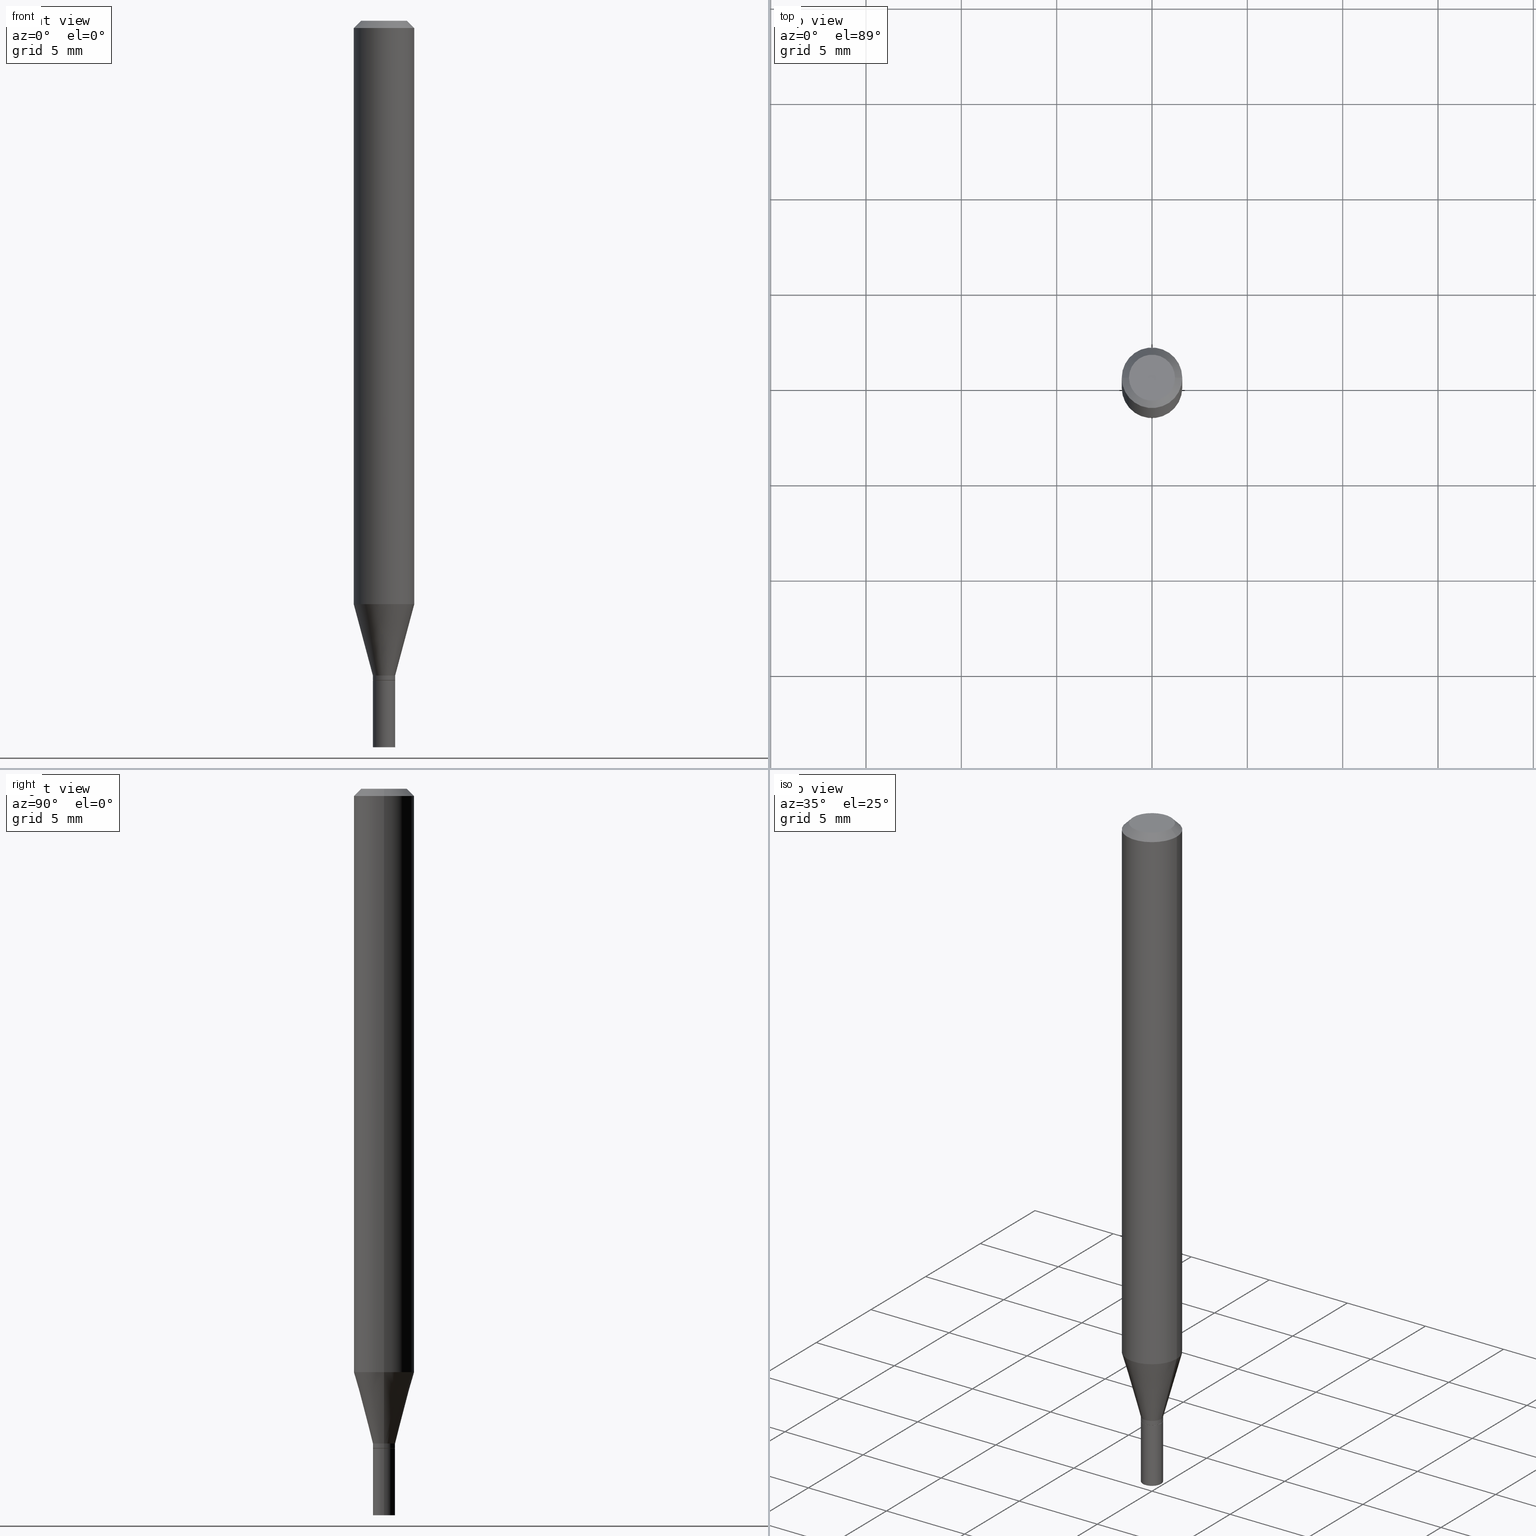
[diagram: canonical four-view strip — front | top / right | iso, engineering-drawing reading convention]
A machine part, canonical four-view strip (front | top / right | iso — engineering-drawing reading convention). The complete STEP part file that produces these views, byte-faithful:
ISO-10303-21;
HEADER;
FILE_DESCRIPTION (( 'STEP AP203' ),
    '1' );
FILE_NAME ('00484.STEP',
    '2024-03-19T21:20:45',
    ( '' ),
    ( '' ),
    'SwSTEP 2.0',
    'SolidWorks 2023',
    '' );
FILE_SCHEMA (( 'CONFIG_CONTROL_DESIGN' ));
ENDSEC;

DATA;
#1 = CARTESIAN_POINT ( 'NONE',  ( 3.306273825962305163E-29, -4.720482770115934188E-15, -1.352000000000000313 ) ) ;
#2 = CARTESIAN_POINT ( 'NONE',  ( 0.02299999999999992675, -4.881090911702717249E-15, -1.352000000000000313 ) ) ;
#3 = EDGE_LOOP ( 'NONE', ( #179, #241, #11, #72 ) ) ;
#4 = CARTESIAN_POINT ( 'NONE',  ( 0.02299999999999992675, -4.881090911702717249E-15, -1.352000000000000313 ) ) ;
#5 = DIRECTION ( 'NONE',  ( 1.000000000000000000, -6.982962677686267499E-15, 4.876176775795935793E-29 ) ) ;
#6 = AXIS2_PLACEMENT_3D ( 'NONE', #141, #37, #36 ) ;
#7 = ADVANCED_FACE ( 'NONE', ( #449 ), #344, .T. ) ;
#8 = AXIS2_PLACEMENT_3D ( 'NONE', #329, #154, #5 ) ;
#9 = CARTESIAN_POINT ( 'NONE',  ( -0.02249999999999999917, -4.592876240784230769E-15, -1.362000000000000099 ) ) ;
#10 = CARTESIAN_POINT ( 'NONE',  ( 3.668203209277705088E-31, -5.237222008264718399E-17, -0.01499999999999999944 ) ) ;
#11 = ORIENTED_EDGE ( 'NONE', *, *, #233, .T. ) ;
#12 = EDGE_CURVE ( 'NONE', #442, #263, #201, .T. ) ;
#13 = CARTESIAN_POINT ( 'NONE',  ( 3.316907271900976096E-16, 0.04749999999999999362, -4.881874950129340235E-17 ) ) ;
#14 = APPROVAL ( #171, 'UNSPECIFIED' ) ;
#15 = LOCAL_TIME ( 17, 20, 45.00000000000000000, #31 ) ;
#16 = AXIS2_PLACEMENT_3D ( 'NONE', #243, #350, #319 ) ;
#17 = DIRECTION ( 'NONE',  ( -1.000000000000000000, 6.982962677686265922E-15, -4.876176775795935793E-29 ) ) ;
#18 = DIRECTION ( 'NONE',  ( 1.000000000000000000, -6.982962677686247778E-15, 0.000000000000000000 ) ) ;
#19 = CARTESIAN_POINT ( 'NONE',  ( 0.02249999999999999917, -4.912514243752305891E-15, -1.362000000000000099 ) ) ;
#20 = CARTESIAN_POINT ( 'NONE',  ( 0.02299999999999992328, -1.606081415867836038E-16, 1.121520658433061533E-30 ) ) ;
#21 = EDGE_LOOP ( 'NONE', ( #405, #301 ) ) ;
#22 = EDGE_CURVE ( 'NONE', #321, #124, #229, .T. ) ;
#23 = PRODUCT_DEFINITION_SHAPE ( 'NONE', 'NONE',  #361 ) ;
#24 = CC_DESIGN_PERSON_AND_ORGANIZATION_ASSIGNMENT ( #69, #354, ( #361 ) ) ;
#25 = CC_DESIGN_SECURITY_CLASSIFICATION ( #283, ( #394 ) ) ;
#26 = AXIS2_PLACEMENT_3D ( 'NONE', #453, #250, #387 ) ;
#27 = CARTESIAN_POINT ( 'NONE',  ( -0.02249999999999999917, -4.595525467958341970E-15, -1.362000000000000099 ) ) ;
#28 = DIRECTION ( 'NONE',  ( -2.445468806185136597E-29, 3.491481338843145583E-15, 1.000000000000000000 ) ) ;
#29 = DIRECTION ( 'NONE',  ( -2.445468806185136877E-29, 3.491481338843145188E-15, 1.000000000000000000 ) ) ;
#30 = CARTESIAN_POINT ( 'NONE',  ( 0.06250000000000000000, -4.642217700336797405E-15, -1.204583993101029815 ) ) ;
#31 = COORDINATED_UNIVERSAL_TIME_OFFSET ( 5, 0, .BEHIND. ) ;
#32 = DIRECTION ( 'NONE',  ( 1.000000000000000000, -6.982962677686267499E-15, 4.876176775795935793E-29 ) ) ;
#33 = CARTESIAN_POINT ( 'NONE',  ( 0.04749999999999999362, -4.035134999187574186E-16, 2.340532281875146013E-16 ) ) ;
#34 = VECTOR ( 'NONE', #90, 39.37007874015748143 ) ;
#35 = AXIS2_PLACEMENT_3D ( 'NONE', #101, #247, #396 ) ;
#36 = DIRECTION ( 'NONE',  ( 1.000000000000000000, 0.000000000000000000, 0.000000000000000000 ) ) ;
#37 = DIRECTION ( 'NONE',  ( 0.000000000000000000, 0.000000000000000000, 1.000000000000000000 ) ) ;
#38 = ORIENTED_EDGE ( 'NONE', *, *, #305, .T. ) ;
#39 = ORIENTED_EDGE ( 'NONE', *, *, #108, .F. ) ;
#40 = CARTESIAN_POINT ( 'NONE',  ( 0.02299999999999999961, -1.606081415867841462E-16, 1.121520658433065211E-30 ) ) ;
#41 = DATE_TIME_ROLE ( 'creation_date' ) ;
#42 = EDGE_CURVE ( 'NONE', #236, #197, #357, .T. ) ;
#43 = FACE_OUTER_BOUND ( 'NONE', #292, .T. ) ;
#44 = CIRCLE ( 'NONE', #445, 0.02299999999999992675 ) ;
#45 = APPROVAL_PERSON_ORGANIZATION ( #132, #196, #289 ) ;
#46 = AXIS2_PLACEMENT_3D ( 'NONE', #131, #203, #389 ) ;
#47 = CYLINDRICAL_SURFACE ( 'NONE', #126, 0.02299999999999992328 ) ;
#48 = ORIENTED_EDGE ( 'NONE', *, *, #22, .T. ) ;
#49 = DIRECTION ( 'NONE',  ( 1.000000000000000000, -6.982962677686266711E-15, 4.876176775795935793E-29 ) ) ;
#50 = ORIENTED_EDGE ( 'NONE', *, *, #262, .T. ) ;
#51 = ORIENTED_EDGE ( 'NONE', *, *, #307, .T. ) ;
#52 = AXIS2_PLACEMENT_3D ( 'NONE', #404, #54, #291 ) ;
#53 = ORIENTED_EDGE ( 'NONE', *, *, #314, .T. ) ;
#54 = DIRECTION ( 'NONE',  ( -2.445468806185136597E-29, 3.491481338843145583E-15, 1.000000000000000000 ) ) ;
#55 = EDGE_CURVE ( 'NONE', #185, #231, #418, .T. ) ;
#56 = DIRECTION ( 'NONE',  ( -2.445468806185136597E-29, 3.491481338843145583E-15, 1.000000000000000000 ) ) ;
#57 = CLOSED_SHELL ( 'NONE', ( #377, #422, #107, #411, #244, #87, #426, #360, #450, #272, #7, #366 ) ) ;
#58 = CONICAL_SURFACE ( 'NONE', #46, 0.06250000000000000000, 0.7853981633974405074 ) ;
#59 = ORIENTED_EDGE ( 'NONE', *, *, #108, .T. ) ;
#60 = CC_DESIGN_PERSON_AND_ORGANIZATION_ASSIGNMENT ( #428, #364, ( #242 ) ) ;
#61 = DIRECTION ( 'NONE',  ( -2.445468806185136597E-29, 3.491481338843145583E-15, 1.000000000000000000 ) ) ;
#62 = CARTESIAN_POINT ( 'NONE',  ( -0.02299999999999999961, -4.832884966659718819E-15, -1.362000000000000099 ) ) ;
#63 = DIRECTION ( 'NONE',  ( -2.445468806185136597E-29, 3.491481338843145583E-15, 1.000000000000000000 ) ) ;
#64 = APPROVAL_ROLE ( '' ) ;
#65 = FACE_OUTER_BOUND ( 'NONE', #392, .T. ) ;
#66 = AXIS2_PLACEMENT_3D ( 'NONE', #10, #375, #146 ) ;
#67 = DATE_AND_TIME ( #320, #15 ) ;
#68 = CARTESIAN_POINT ( 'NONE',  ( -0.04749999999999999362, 3.578768372314215436E-16, 2.340532281875096216E-16 ) ) ;
#69 = PERSON_AND_ORGANIZATION ( #195, #106 ) ;
#70 = ADVANCED_BREP_SHAPE_REPRESENTATION ( '00484', ( #99, #265, #6 ), #118 ) ;
#71 = LINE ( 'NONE', #178, #226 ) ;
#72 = ORIENTED_EDGE ( 'NONE', *, *, #441, .F. ) ;
#73 = CIRCLE ( 'NONE', #385, 0.02249999999999999917 ) ;
#74 = PERSON_AND_ORGANIZATION ( #195, #106 ) ;
#75 = DIRECTION ( 'NONE',  ( -2.445468806185136597E-29, 3.491481338843145583E-15, 1.000000000000000000 ) ) ;
#76 = VERTEX_POINT ( 'NONE', #9 ) ;
#77 = LINE ( 'NONE', #40, #415 ) ;
#78 = EDGE_CURVE ( 'NONE', #162, #142, #414, .T. ) ;
#79 = PERSON_AND_ORGANIZATION ( #195, #106 ) ;
#80 = VERTEX_POINT ( 'NONE', #419 ) ;
#81 = CARTESIAN_POINT ( 'NONE',  ( -0.06250000000000000000, 4.440892098500626162E-16, -3.074334431409316114E-30 ) ) ;
#82 = EDGE_LOOP ( 'NONE', ( #433, #187, #296, #245 ) ) ;
#83 = ORIENTED_EDGE ( 'NONE', *, *, #156, .T. ) ;
#84 = LOCAL_TIME ( 17, 20, 45.00000000000000000, #227 ) ;
#85 = AXIS2_PLACEMENT_3D ( 'NONE', #135, #315, #457 ) ;
#86 = DIRECTION ( 'NONE',  ( -2.445468806185136597E-29, 3.491481338843145583E-15, 1.000000000000000000 ) ) ;
#87 = ADVANCED_FACE ( 'NONE', ( #273 ), #268, .T. ) ;
#88 = ORIENTED_EDGE ( 'NONE', *, *, #156, .F. ) ;
#89 = DATE_TIME_ROLE ( 'classification_date' ) ;
#90 = DIRECTION ( 'NONE',  ( 0.7071067811865656694, -2.468850131082446387E-15, 0.7071067811865294761 ) ) ;
#91 = ORIENTED_EDGE ( 'NONE', *, *, #42, .T. ) ;
#92 = ORIENTED_EDGE ( 'NONE', *, *, #55, .T. ) ;
#93 = VECTOR ( 'NONE', #223, 39.37007874015748143 ) ;
#94 = DIRECTION ( 'NONE',  ( 1.000000000000000000, -6.982962677686266711E-15, 4.876176775795935793E-29 ) ) ;
#95 = DIMENSIONAL_EXPONENTS ( 1.000000000000000000, 0.000000000000000000, 0.000000000000000000, 0.000000000000000000, 0.000000000000000000, 0.000000000000000000, 0.000000000000000000 ) ;
#96 = AXIS2_PLACEMENT_3D ( 'NONE', #399, #184, #192 ) ;
#97 = CARTESIAN_POINT ( 'NONE',  ( 3.306273825962305163E-29, -4.720482770115934188E-15, -1.352000000000000313 ) ) ;
#98 = ORIENTED_EDGE ( 'NONE', *, *, #206, .T. ) ;
#99 = MANIFOLD_SOLID_BREP ( 'Body-Move/Copy2[1]', #164 ) ;
#100 = EDGE_CURVE ( 'NONE', #80, #335, #456, .T. ) ;
#101 = CARTESIAN_POINT ( 'NONE',  ( 3.576687321579069994E-29, -5.368277968210015545E-15, -1.500000000000000222 ) ) ;
#102 = PLANE ( 'NONE',  #26 ) ;
#103 = AXIS2_PLACEMENT_3D ( 'NONE', #97, #61, #110 ) ;
#104 = CARTESIAN_POINT ( 'NONE',  ( 3.329505779621063907E-29, -4.753651842834943544E-15, -1.361500000000000155 ) ) ;
#105 = DATE_AND_TIME ( #316, #172 ) ;
#106 = ORGANIZATION ( 'UNSPECIFIED', 'UNSPECIFIED', '' ) ;
#107 = ADVANCED_FACE ( 'NONE', ( #251 ), #58, .T. ) ;
#108 = EDGE_CURVE ( 'NONE', #368, #462, #345, .T. ) ;
#109 = CIRCLE ( 'NONE', #276, 0.04749999999999999362 ) ;
#110 = DIRECTION ( 'NONE',  ( 1.000000000000000000, -6.982962677686269866E-15, 0.000000000000000000 ) ) ;
#111 = PRODUCT_RELATED_PRODUCT_CATEGORY ( 'detail', '', ( #242 ) ) ;
#112 = DATE_AND_TIME ( #312, #222 ) ;
#113 = EDGE_LOOP ( 'NONE', ( #120, #53, #382, #288 ) ) ;
#114 = CARTESIAN_POINT ( 'NONE',  ( 0.000000000000000000, 0.000000000000000000, 0.000000000000000000 ) ) ;
#115 = EDGE_LOOP ( 'NONE', ( #293, #421, #127, #309 ) ) ;
#116 = APPLICATION_CONTEXT ( 'configuration controlled 3d designs of mechanical parts and assemblies' ) ;
#117 = CARTESIAN_POINT ( 'NONE',  ( 3.306273825962305163E-29, -4.720482770115934188E-15, -1.352000000000000313 ) ) ;
#118 =( GEOMETRIC_REPRESENTATION_CONTEXT ( 3 ) GLOBAL_UNCERTAINTY_ASSIGNED_CONTEXT ( ( #174 ) ) GLOBAL_UNIT_ASSIGNED_CONTEXT ( ( #136, #460, #133 ) ) REPRESENTATION_CONTEXT ( 'NONE', 'WORKASPACE' ) );
#119 = CIRCLE ( 'NONE', #346, 0.02299999999999999961 ) ;
#120 = ORIENTED_EDGE ( 'NONE', *, *, #100, .T. ) ;
#121 = CARTESIAN_POINT ( 'NONE',  ( -0.02299999999999992675, -4.159375632011227060E-15, -1.352000000000000313 ) ) ;
#122 = CARTESIAN_POINT ( 'NONE',  ( -5.723698685194923234E-45, 8.171924785126947293E-31, 2.340532281875119882E-16 ) ) ;
#123 = DIRECTION ( 'NONE',  ( -2.445468806185136597E-29, 3.491481338843145583E-15, 1.000000000000000000 ) ) ;
#124 = VERTEX_POINT ( 'NONE', #30 ) ;
#125 = ADVANCED_FACE ( 'NONE', ( #170 ), #423, .F. ) ;
#126 = AXIS2_PLACEMENT_3D ( 'NONE', #114, #86, #228 ) ;
#127 = ORIENTED_EDGE ( 'NONE', *, *, #78, .T. ) ;
#128 = CIRCLE ( 'NONE', #443, 0.06250000000000000000 ) ;
#129 = EDGE_CURVE ( 'NONE', #80, #236, #77, .T. ) ;
#130 = FACE_OUTER_BOUND ( 'NONE', #439, .T. ) ;
#131 = CARTESIAN_POINT ( 'NONE',  ( 3.668203209277705088E-31, -5.237222008264718399E-17, -0.01499999999999999944 ) ) ;
#132 = PERSON_AND_ORGANIZATION ( #195, #106 ) ;
#133 =( NAMED_UNIT ( * ) SI_UNIT ( $, .STERADIAN. ) SOLID_ANGLE_UNIT ( ) );
#134 = AXIS2_PLACEMENT_3D ( 'NONE', #333, #370, #49 ) ;
#135 = CARTESIAN_POINT ( 'NONE',  ( 3.306273825962305163E-29, -4.720482770115934188E-15, -1.352000000000000313 ) ) ;
#136 =( CONVERSION_BASED_UNIT ( 'INCH', #447 ) LENGTH_UNIT ( ) NAMED_UNIT ( #95 ) );
#137 = EDGE_CURVE ( 'NONE', #124, #462, #128, .T. ) ;
#138 = EDGE_CURVE ( 'NONE', #231, #142, #246, .T. ) ;
#139 = DIRECTION ( 'NONE',  ( -2.445468806185136597E-29, 3.491481338843145583E-15, 1.000000000000000000 ) ) ;
#140 = ORIENTED_EDGE ( 'NONE', *, *, #138, .T. ) ;
#141 = CARTESIAN_POINT ( 'NONE',  ( 0.000000000000000000, 0.000000000000000000, 0.000000000000000000 ) ) ;
#142 = VERTEX_POINT ( 'NONE', #390 ) ;
#143 = AXIS2_PLACEMENT_3D ( 'NONE', #122, #191, #332 ) ;
#144 = DIRECTION ( 'NONE',  ( -2.445468806185136877E-29, 3.491481338843145188E-15, 1.000000000000000000 ) ) ;
#145 = ORIENTED_EDGE ( 'NONE', *, *, #348, .T. ) ;
#146 = DIRECTION ( 'NONE',  ( -1.000000000000000000, 6.982962677686266711E-15, 0.000000000000000000 ) ) ;
#147 = FACE_OUTER_BOUND ( 'NONE', #328, .T. ) ;
#148 = DATE_AND_TIME ( #221, #84 ) ;
#149 = FACE_OUTER_BOUND ( 'NONE', #155, .T. ) ;
#150 = ORIENTED_EDGE ( 'NONE', *, *, #22, .F. ) ;
#151 = AXIS2_PLACEMENT_3D ( 'NONE', #340, #278, #18 ) ;
#152 = CIRCLE ( 'NONE', #96, 0.02249999999999999917 ) ;
#153 = CARTESIAN_POINT ( 'NONE',  ( 3.668203209277705088E-31, -5.237222008264718399E-17, -0.01499999999999999944 ) ) ;
#154 = DIRECTION ( 'NONE',  ( -2.445468806185136597E-29, 3.491481338843145583E-15, 1.000000000000000000 ) ) ;
#155 = EDGE_LOOP ( 'NONE', ( #287, #264, #330, #324 ) ) ;
#156 = EDGE_CURVE ( 'NONE', #462, #124, #186, .T. ) ;
#157 = DIRECTION ( 'NONE',  ( 2.438088387897960049E-29, -3.491481338843145188E-15, -1.000000000000000000 ) ) ;
#158 = VECTOR ( 'NONE', #451, 39.37007874015748143 ) ;
#159 = CARTESIAN_POINT ( 'NONE',  ( -0.06250000000000000000, -3.761693323131343908E-15, -1.204583993101029815 ) ) ;
#160 = ORIENTED_EDGE ( 'NONE', *, *, #213, .F. ) ;
#161 = CARTESIAN_POINT ( 'NONE',  ( 0.02299999999999999961, -4.916005725091148109E-15, -1.362000000000000099 ) ) ;
#162 = VERTEX_POINT ( 'NONE', #425 ) ;
#163 = SHAPE_DEFINITION_REPRESENTATION ( #23, #70 ) ;
#164 = CLOSED_SHELL ( 'NONE', ( #393, #125, #252, #416 ) ) ;
#165 = CIRCLE ( 'NONE', #207, 0.02299999999999992328 ) ;
#166 = DIRECTION ( 'NONE',  ( 0.7071067811865420216, -7.319954787623237113E-15, -0.7071067811865530128 ) ) ;
#167 = CARTESIAN_POINT ( 'NONE',  ( 0.02299999999999992328, -4.914259984421726606E-15, -1.361500000000000155 ) ) ;
#168 = EDGE_CURVE ( 'NONE', #220, #263, #165, .T. ) ;
#169 = CARTESIAN_POINT ( 'NONE',  ( 3.329505779621063907E-29, -4.753651842834943544E-15, -1.361500000000000155 ) ) ;
#170 = FACE_OUTER_BOUND ( 'NONE', #21, .T. ) ;
#171 = APPROVAL_STATUS ( 'not_yet_approved' ) ;
#172 = LOCAL_TIME ( 17, 20, 45.00000000000000000, #217 ) ;
#173 = CYLINDRICAL_SURFACE ( 'NONE', #256, 0.02299999999999999961 ) ;
#174 = UNCERTAINTY_MEASURE_WITH_UNIT (LENGTH_MEASURE( 1.000000000000000082E-05 ), #136, 'distance_accuracy_value', 'NONE');
#175 = DIRECTION ( 'NONE',  ( -2.445468806185136597E-29, 3.491481338843145583E-15, 1.000000000000000000 ) ) ;
#176 = CARTESIAN_POINT ( 'NONE',  ( 3.668203209277704895E-29, -5.237222008264718177E-15, -1.500000000000000222 ) ) ;
#177 = COORDINATED_UNIVERSAL_TIME_OFFSET ( 5, 0, .BEHIND. ) ;
#178 = CARTESIAN_POINT ( 'NONE',  ( 0.06250000000000000000, -4.364351673553916694E-16, 3.047610484872459871E-30 ) ) ;
#179 = ORIENTED_EDGE ( 'NONE', *, *, #307, .F. ) ;
#180 = APPROVAL_DATE_TIME ( #112, #196 ) ;
#181 = EDGE_LOOP ( 'NONE', ( #39, #374, #48, #88 ) ) ;
#182 = EDGE_LOOP ( 'NONE', ( #98, #51, #216, #400 ) ) ;
#183 = CIRCLE ( 'NONE', #334, 0.06250000000000000000 ) ;
#184 = DIRECTION ( 'NONE',  ( -2.445468806185136597E-29, 3.491481338843145583E-15, 1.000000000000000000 ) ) ;
#185 = VERTEX_POINT ( 'NONE', #33 ) ;
#186 = CIRCLE ( 'NONE', #16, 0.06250000000000000000 ) ;
#187 = ORIENTED_EDGE ( 'NONE', *, *, #275, .T. ) ;
#188 = CYLINDRICAL_SURFACE ( 'NONE', #8, 0.02299999999999999961 ) ;
#189 = EDGE_LOOP ( 'NONE', ( #91, #261 ) ) ;
#190 = DIRECTION ( 'NONE',  ( 1.000000000000000000, -6.982962677686269866E-15, 0.000000000000000000 ) ) ;
#191 = DIRECTION ( 'NONE',  ( -2.445468806185136597E-29, 3.491481338843145583E-15, 1.000000000000000000 ) ) ;
#192 = DIRECTION ( 'NONE',  ( 1.000000000000000000, -6.982962677686269077E-15, 0.000000000000000000 ) ) ;
#193 = DIRECTION ( 'NONE',  ( -1.000000000000000000, 6.982962677686265922E-15, -4.876176775795935793E-29 ) ) ;
#194 = AXIS2_PLACEMENT_3D ( 'NONE', #104, #455, #342 ) ;
#195 = PERSON ( 'UNSPECIFIED', 'UNSPECIFIED', 'UNSPECIFIED', ('UNSPECIFIED'), ('UNSPECIFIED'), ('UNSPECIFIED') ) ;
#196 = APPROVAL ( #424, 'UNSPECIFIED' ) ;
#197 = VERTEX_POINT ( 'NONE', #62 ) ;
#198 = CYLINDRICAL_SURFACE ( 'NONE', #134, 0.02299999999999992328 ) ;
#199 = PLANE ( 'NONE',  #376 ) ;
#200 = CC_DESIGN_APPROVAL ( #196, ( #361 ) ) ;
#201 = LINE ( 'NONE', #282, #34 ) ;
#202 = LINE ( 'NONE', #27, #317 ) ;
#203 = DIRECTION ( 'NONE',  ( 2.445468806185136597E-29, -3.491481338843145583E-15, -1.000000000000000000 ) ) ;
#204 = AXIS2_PLACEMENT_3D ( 'NONE', #13, #444, #17 ) ;
#205 = AXIS2_PLACEMENT_3D ( 'NONE', #153, #298, #440 ) ;
#206 = EDGE_CURVE ( 'NONE', #263, #220, #466, .T. ) ;
#207 = AXIS2_PLACEMENT_3D ( 'NONE', #169, #284, #311 ) ;
#208 = PLANE ( 'NONE',  #204 ) ;
#209 = DIRECTION ( 'NONE',  ( 1.000000000000000000, -6.982962677686270655E-15, 0.000000000000000000 ) ) ;
#210 = APPROVAL_ROLE ( '' ) ;
#211 = LINE ( 'NONE', #458, #302 ) ;
#212 = FACE_OUTER_BOUND ( 'NONE', #82, .T. ) ;
#213 = EDGE_CURVE ( 'NONE', #76, #220, #202, .T. ) ;
#214 = MECHANICAL_CONTEXT ( 'NONE', #116, 'mechanical' ) ;
#215 = PERSON_AND_ORGANIZATION ( #195, #106 ) ;
#216 = ORIENTED_EDGE ( 'NONE', *, *, #290, .F. ) ;
#217 = COORDINATED_UNIVERSAL_TIME_OFFSET ( 5, 0, .BEHIND. ) ;
#218 = DIRECTION ( 'NONE',  ( -2.445468806185136597E-29, 3.491481338843145583E-15, 1.000000000000000000 ) ) ;
#219 = DESIGN_CONTEXT ( 'detailed design', #325, 'design' ) ;
#220 = VERTEX_POINT ( 'NONE', #343 ) ;
#221 = CALENDAR_DATE ( 2024, 19, 3 ) ;
#222 = LOCAL_TIME ( 17, 20, 45.00000000000000000, #177 ) ;
#223 = DIRECTION ( 'NONE',  ( -2.445468806185136877E-29, 3.491481338843145188E-15, 1.000000000000000000 ) ) ;
#224 = ORIENTED_EDGE ( 'NONE', *, *, #279, .F. ) ;
#225 = DIRECTION ( 'NONE',  ( 1.000000000000000000, -6.982962677686266711E-15, 4.876176775795935793E-29 ) ) ;
#226 = VECTOR ( 'NONE', #429, 39.37007874015748143 ) ;
#227 = COORDINATED_UNIVERSAL_TIME_OFFSET ( 5, 0, .BEHIND. ) ;
#228 = DIRECTION ( 'NONE',  ( 1.000000000000000000, -6.982962677686266711E-15, 4.876176775795935793E-29 ) ) ;
#229 = LINE ( 'NONE', #4, #380 ) ;
#230 = DIRECTION ( 'NONE',  ( 1.000000000000000000, -6.982962677686269866E-15, 0.000000000000000000 ) ) ;
#231 = VERTEX_POINT ( 'NONE', #68 ) ;
#232 = EDGE_CURVE ( 'NONE', #185, #162, #211, .T. ) ;
#233 = EDGE_CURVE ( 'NONE', #263, #321, #352, .T. ) ;
#234 = CARTESIAN_POINT ( 'NONE',  ( -0.02299999999999999961, -4.832884966659718819E-15, -1.500000000000000222 ) ) ;
#235 = CONICAL_SURFACE ( 'NONE', #406, 0.02249999999999999917, 0.7853981633974739252 ) ;
#236 = VERTEX_POINT ( 'NONE', #161 ) ;
#237 = CARTESIAN_POINT ( 'NONE',  ( 1.606081415868174016E-16, 0.02299999999999524647, -1.362000000000000099 ) ) ;
#238 = CC_DESIGN_PERSON_AND_ORGANIZATION_ASSIGNMENT ( #215, #322, ( #394 ) ) ;
#239 = CC_DESIGN_PERSON_AND_ORGANIZATION_ASSIGNMENT ( #74, #257, ( #394 ) ) ;
#240 = LOCAL_TIME ( 17, 20, 45.00000000000000000, #384 ) ;
#241 = ORIENTED_EDGE ( 'NONE', *, *, #168, .T. ) ;
#242 = PRODUCT ( '00484', '00484', '', ( #214 ) ) ;
#243 = CARTESIAN_POINT ( 'NONE',  ( 2.945772579558500025E-29, -4.205782532981405736E-15, -1.204583993101029815 ) ) ;
#244 = ADVANCED_FACE ( 'NONE', ( #130 ), #297, .T. ) ;
#245 = ORIENTED_EDGE ( 'NONE', *, *, #323, .F. ) ;
#246 = LINE ( 'NONE', #286, #303 ) ;
#247 = DIRECTION ( 'NONE',  ( -2.438088387897960049E-29, 3.491481338843145188E-15, 1.000000000000000000 ) ) ;
#248 = APPLICATION_PROTOCOL_DEFINITION ( 'international standard', 'config_control_design', 1994, #325 ) ;
#249 = VECTOR ( 'NONE', #144, 39.37007874015748143 ) ;
#250 = DIRECTION ( 'NONE',  ( -2.438088387897960049E-29, 3.491481338843145188E-15, 1.000000000000000000 ) ) ;
#251 = FACE_OUTER_BOUND ( 'NONE', #115, .T. ) ;
#252 = ADVANCED_FACE ( 'NONE', ( #212 ), #173, .T. ) ;
#253 = CARTESIAN_POINT ( 'NONE',  ( 3.668203209277704895E-29, -5.237222008264718177E-15, -1.500000000000000222 ) ) ;
#254 = ORIENTED_EDGE ( 'NONE', *, *, #279, .T. ) ;
#255 = APPROVAL_DATE_TIME ( #105, #14 ) ;
#256 = AXIS2_PLACEMENT_3D ( 'NONE', #259, #28, #32 ) ;
#257 = PERSON_AND_ORGANIZATION_ROLE ( 'creator' ) ;
#258 = CC_DESIGN_DATE_AND_TIME_ASSIGNMENT ( #67, #41, ( #361 ) ) ;
#259 = CARTESIAN_POINT ( 'NONE',  ( 0.000000000000000000, 0.000000000000000000, 0.000000000000000000 ) ) ;
#260 = ORIENTED_EDGE ( 'NONE', *, *, #137, .F. ) ;
#261 = ORIENTED_EDGE ( 'NONE', *, *, #323, .T. ) ;
#262 = EDGE_CURVE ( 'NONE', #231, #185, #109, .T. ) ;
#263 = VERTEX_POINT ( 'NONE', #167 ) ;
#264 = ORIENTED_EDGE ( 'NONE', *, *, #338, .T. ) ;
#265 = MANIFOLD_SOLID_BREP ( 'Body-Move/Copy2[2]', #57 ) ;
#266 = FACE_OUTER_BOUND ( 'NONE', #182, .T. ) ;
#267 = ORIENTED_EDGE ( 'NONE', *, *, #280, .T. ) ;
#268 = CONICAL_SURFACE ( 'NONE', #103, 0.02299999999999992675, 0.2617993877991502405 ) ;
#269 = CARTESIAN_POINT ( 'NONE',  ( 3.330728514024156148E-29, -4.755397583504364259E-15, -1.362000000000000099 ) ) ;
#270 = DIRECTION ( 'NONE',  ( -2.445468806185136597E-29, 3.491481338843145583E-15, 1.000000000000000000 ) ) ;
#271 = ORIENTED_EDGE ( 'NONE', *, *, #168, .F. ) ;
#272 = ADVANCED_FACE ( 'NONE', ( #313 ), #102, .F. ) ;
#273 = FACE_OUTER_BOUND ( 'NONE', #181, .T. ) ;
#274 = CARTESIAN_POINT ( 'NONE',  ( -0.02299999999999992328, 1.634248292248224976E-16, -1.131355070758624642E-30 ) ) ;
#275 = EDGE_CURVE ( 'NONE', #335, #80, #119, .T. ) ;
#276 = AXIS2_PLACEMENT_3D ( 'NONE', #349, #75, #391 ) ;
#277 = APPROVAL_STATUS ( 'not_yet_approved' ) ;
#278 = DIRECTION ( 'NONE',  ( -2.445468806185136597E-29, 3.491481338843145583E-15, 1.000000000000000000 ) ) ;
#279 = EDGE_CURVE ( 'NONE', #442, #76, #73, .T. ) ;
#280 = EDGE_CURVE ( 'NONE', #124, #162, #71, .T. ) ;
#281 = DIRECTION ( 'NONE',  ( -2.445468806185136877E-29, 3.491481338843145188E-15, 1.000000000000000000 ) ) ;
#282 = CARTESIAN_POINT ( 'NONE',  ( 0.02249999999999999917, -4.912514243752305891E-15, -1.362000000000000099 ) ) ;
#283 = SECURITY_CLASSIFICATION ( '', '', #397 ) ;
#284 = DIRECTION ( 'NONE',  ( -2.445468806185136597E-29, 3.491481338843145583E-15, 1.000000000000000000 ) ) ;
#285 = CARTESIAN_POINT ( 'NONE',  ( 3.330728514024156148E-29, -4.755397583504364259E-15, -1.362000000000000099 ) ) ;
#286 = CARTESIAN_POINT ( 'NONE',  ( -0.06250000000000000000, 3.840629472727444916E-16, -0.01499999999999999944 ) ) ;
#287 = ORIENTED_EDGE ( 'NONE', *, *, #137, .T. ) ;
#288 = ORIENTED_EDGE ( 'NONE', *, *, #129, .F. ) ;
#289 = APPROVAL_ROLE ( '' ) ;
#290 = EDGE_CURVE ( 'NONE', #321, #368, #44, .T. ) ;
#291 = DIRECTION ( 'NONE',  ( 1.000000000000000000, -6.982962677686247778E-15, 0.000000000000000000 ) ) ;
#292 = EDGE_LOOP ( 'NONE', ( #359, #438, #140, #145 ) ) ;
#293 = ORIENTED_EDGE ( 'NONE', *, *, #55, .F. ) ;
#294 = PERSON_AND_ORGANIZATION ( #195, #106 ) ;
#295 = ORIENTED_EDGE ( 'NONE', *, *, #338, .F. ) ;
#296 = ORIENTED_EDGE ( 'NONE', *, *, #129, .T. ) ;
#297 = CONICAL_SURFACE ( 'NONE', #85, 0.02299999999999992675, 0.2617993877991502405 ) ;
#298 = DIRECTION ( 'NONE',  ( -2.445468806185136597E-29, 3.491481338843145583E-15, 1.000000000000000000 ) ) ;
#299 = CYLINDRICAL_SURFACE ( 'NONE', #310, 0.06250000000000000000 ) ;
#300 = DIRECTION ( 'NONE',  ( 1.000000000000000000, -6.982962677686269077E-15, 0.000000000000000000 ) ) ;
#301 = ORIENTED_EDGE ( 'NONE', *, *, #275, .F. ) ;
#302 = VECTOR ( 'NONE', #166, 39.37007874015748143 ) ;
#303 = VECTOR ( 'NONE', #420, 39.37007874015748143 ) ;
#304 = ORIENTED_EDGE ( 'NONE', *, *, #12, .F. ) ;
#305 = EDGE_CURVE ( 'NONE', #76, #442, #152, .T. ) ;
#306 = APPROVAL_DATE_TIME ( #381, #465 ) ;
#307 = EDGE_CURVE ( 'NONE', #220, #368, #436, .T. ) ;
#308 = CC_DESIGN_PERSON_AND_ORGANIZATION_ASSIGNMENT ( #79, #351, ( #283 ) ) ;
#309 = ORIENTED_EDGE ( 'NONE', *, *, #138, .F. ) ;
#310 = AXIS2_PLACEMENT_3D ( 'NONE', #379, #56, #94 ) ;
#311 = DIRECTION ( 'NONE',  ( 1.000000000000000000, -6.982962677686271444E-15, 0.000000000000000000 ) ) ;
#312 = CALENDAR_DATE ( 2024, 19, 3 ) ;
#313 = FACE_OUTER_BOUND ( 'NONE', #408, .T. ) ;
#314 = EDGE_CURVE ( 'NONE', #335, #197, #409, .T. ) ;
#315 = DIRECTION ( 'NONE',  ( -2.445468806185136597E-29, 3.491481338843145583E-15, 1.000000000000000000 ) ) ;
#316 = CALENDAR_DATE ( 2024, 19, 3 ) ;
#317 = VECTOR ( 'NONE', #388, 39.37007874015748143 ) ;
#318 = DIRECTION ( 'NONE',  ( -2.445468806185136597E-29, 3.491481338843145583E-15, 1.000000000000000000 ) ) ;
#319 = DIRECTION ( 'NONE',  ( 1.000000000000000000, -6.982962677686270655E-15, 0.000000000000000000 ) ) ;
#320 = CALENDAR_DATE ( 2024, 19, 3 ) ;
#321 = VERTEX_POINT ( 'NONE', #2 ) ;
#322 = PERSON_AND_ORGANIZATION_ROLE ( 'design_supplier' ) ;
#323 = EDGE_CURVE ( 'NONE', #197, #236, #386, .T. ) ;
#324 = ORIENTED_EDGE ( 'NONE', *, *, #280, .F. ) ;
#325 = APPLICATION_CONTEXT ( 'configuration controlled 3d designs of mechanical parts and assemblies' ) ;
#326 = AXIS2_PLACEMENT_3D ( 'NONE', #402, #435, #225 ) ;
#327 = DIRECTION ( 'NONE',  ( -2.445468806185136877E-29, 3.491481338843145188E-15, 1.000000000000000000 ) ) ;
#328 = EDGE_LOOP ( 'NONE', ( #254, #463, #401, #304 ) ) ;
#329 = CARTESIAN_POINT ( 'NONE',  ( 0.000000000000000000, 0.000000000000000000, 0.000000000000000000 ) ) ;
#330 = ORIENTED_EDGE ( 'NONE', *, *, #78, .F. ) ;
#331 = DIRECTION ( 'NONE',  ( -2.445468806185136597E-29, 3.491481338843145583E-15, 1.000000000000000000 ) ) ;
#332 = DIRECTION ( 'NONE',  ( 1.000000000000000000, -6.982962677686267499E-15, 4.852736867747366768E-29 ) ) ;
#333 = CARTESIAN_POINT ( 'NONE',  ( 0.000000000000000000, 0.000000000000000000, 0.000000000000000000 ) ) ;
#334 = AXIS2_PLACEMENT_3D ( 'NONE', #413, #218, #373 ) ;
#335 = VERTEX_POINT ( 'NONE', #234 ) ;
#336 = FACE_OUTER_BOUND ( 'NONE', #113, .T. ) ;
#337 = FACE_OUTER_BOUND ( 'NONE', #189, .T. ) ;
#338 = EDGE_CURVE ( 'NONE', #462, #142, #367, .T. ) ;
#339 = CC_DESIGN_APPROVAL ( #465, ( #283 ) ) ;
#340 = CARTESIAN_POINT ( 'NONE',  ( 3.330728514024156148E-29, -4.755397583504364259E-15, -1.362000000000000099 ) ) ;
#341 = CC_DESIGN_DATE_AND_TIME_ASSIGNMENT ( #148, #89, ( #283 ) ) ;
#342 = DIRECTION ( 'NONE',  ( 1.000000000000000000, -6.982962677686271444E-15, 0.000000000000000000 ) ) ;
#343 = CARTESIAN_POINT ( 'NONE',  ( -0.02299999999999992328, -4.590227013610121145E-15, -1.361500000000000155 ) ) ;
#344 = CONICAL_SURFACE ( 'NONE', #437, 0.02249999999999999917, 0.7853981633974739252 ) ;
#345 = LINE ( 'NONE', #353, #158 ) ;
#346 = AXIS2_PLACEMENT_3D ( 'NONE', #253, #318, #461 ) ;
#347 = CALENDAR_DATE ( 2024, 19, 3 ) ;
#348 = EDGE_CURVE ( 'NONE', #142, #162, #183, .T. ) ;
#349 = CARTESIAN_POINT ( 'NONE',  ( -5.723698685194923234E-45, 8.171924785126947293E-31, 2.340532281875119882E-16 ) ) ;
#350 = DIRECTION ( 'NONE',  ( -2.445468806185136597E-29, 3.491481338843145583E-15, 1.000000000000000000 ) ) ;
#351 = PERSON_AND_ORGANIZATION_ROLE ( 'classification_officer' ) ;
#352 = LINE ( 'NONE', #20, #369 ) ;
#353 = CARTESIAN_POINT ( 'NONE',  ( -0.02299999999999992675, -4.557057940891111789E-15, -1.352000000000000313 ) ) ;
#354 = PERSON_AND_ORGANIZATION_ROLE ( 'creator' ) ;
#355 = CYLINDRICAL_SURFACE ( 'NONE', #326, 0.06250000000000000000 ) ;
#356 = APPROVAL_PERSON_ORGANIZATION ( #452, #14, #210 ) ;
#357 = CIRCLE ( 'NONE', #151, 0.02299999999999999961 ) ;
#358 = VECTOR ( 'NONE', #327, 39.37007874015748143 ) ;
#359 = ORIENTED_EDGE ( 'NONE', *, *, #232, .F. ) ;
#360 = ADVANCED_FACE ( 'NONE', ( #43 ), #431, .T. ) ;
#361 = PRODUCT_DEFINITION ( 'UNKNOWN', '', #394, #219 ) ;
#362 = ORIENTED_EDGE ( 'NONE', *, *, #290, .T. ) ;
#363 = EDGE_LOOP ( 'NONE', ( #160, #38, #412, #271 ) ) ;
#364 = PERSON_AND_ORGANIZATION_ROLE ( 'design_owner' ) ;
#365 = EDGE_LOOP ( 'NONE', ( #295, #83, #267, #398 ) ) ;
#366 = ADVANCED_FACE ( 'NONE', ( #432 ), #47, .T. ) ;
#367 = LINE ( 'NONE', #81, #93 ) ;
#368 = VERTEX_POINT ( 'NONE', #121 ) ;
#369 = VECTOR ( 'NONE', #29, 39.37007874015748143 ) ;
#370 = DIRECTION ( 'NONE',  ( -2.445468806185136597E-29, 3.491481338843145583E-15, 1.000000000000000000 ) ) ;
#371 = DIRECTION ( 'NONE',  ( -2.445468806185136597E-29, 3.491481338843145583E-15, 1.000000000000000000 ) ) ;
#372 = DIRECTION ( 'NONE',  ( 0.2588190451025215166, 1.565188264969620784E-15, 0.9659258262890679791 ) ) ;
#373 = DIRECTION ( 'NONE',  ( 1.000000000000000000, -6.982962677686266711E-15, 0.000000000000000000 ) ) ;
#374 = ORIENTED_EDGE ( 'NONE', *, *, #441, .T. ) ;
#375 = DIRECTION ( 'NONE',  ( 2.445468806185136597E-29, -3.491481338843145583E-15, -1.000000000000000000 ) ) ;
#376 = AXIS2_PLACEMENT_3D ( 'NONE', #237, #157, #193 ) ;
#377 = ADVANCED_FACE ( 'NONE', ( #266 ), #198, .T. ) ;
#378 = CARTESIAN_POINT ( 'NONE',  ( 3.330728514024156148E-29, -4.755397583504364259E-15, -1.362000000000000099 ) ) ;
#379 = CARTESIAN_POINT ( 'NONE',  ( 0.000000000000000000, 0.000000000000000000, 0.000000000000000000 ) ) ;
#380 = VECTOR ( 'NONE', #372, 39.37007874015748143 ) ;
#381 = DATE_AND_TIME ( #347, #240 ) ;
#382 = ORIENTED_EDGE ( 'NONE', *, *, #42, .F. ) ;
#383 = CARTESIAN_POINT ( 'NONE',  ( 2.945772579558500025E-29, -4.205782532981405736E-15, -1.204583993101029815 ) ) ;
#384 = COORDINATED_UNIVERSAL_TIME_OFFSET ( 5, 0, .BEHIND. ) ;
#385 = AXIS2_PLACEMENT_3D ( 'NONE', #285, #139, #427 ) ;
#386 = CIRCLE ( 'NONE', #52, 0.02299999999999999961 ) ;
#387 = DIRECTION ( 'NONE',  ( 1.000000000000000000, -6.982962677686265922E-15, 4.876176775795935793E-29 ) ) ;
#388 = DIRECTION ( 'NONE',  ( -0.7071067811865656694, 7.493145998870420424E-15, 0.7071067811865294761 ) ) ;
#389 = DIRECTION ( 'NONE',  ( -1.000000000000000000, 6.982962677686266711E-15, 0.000000000000000000 ) ) ;
#390 = CARTESIAN_POINT ( 'NONE',  ( -0.06250000000000000000, -1.684988166681963988E-15, -0.01499999999999999944 ) ) ;
#391 = DIRECTION ( 'NONE',  ( 1.000000000000000000, -6.982962677686267499E-15, 4.852736867747366768E-29 ) ) ;
#392 = EDGE_LOOP ( 'NONE', ( #50, #92 ) ) ;
#393 = ADVANCED_FACE ( 'NONE', ( #336 ), #188, .T. ) ;
#394 = PRODUCT_DEFINITION_FORMATION_WITH_SPECIFIED_SOURCE ( 'ANY', '', #242, .NOT_KNOWN. ) ;
#395 = AXIS2_PLACEMENT_3D ( 'NONE', #176, #63, #459 ) ;
#396 = DIRECTION ( 'NONE',  ( 1.000000000000000000, -6.982962677686265922E-15, 4.876176775795935793E-29 ) ) ;
#397 = SECURITY_CLASSIFICATION_LEVEL ( 'unclassified' ) ;
#398 = ORIENTED_EDGE ( 'NONE', *, *, #348, .F. ) ;
#399 = CARTESIAN_POINT ( 'NONE',  ( 3.330728514024156148E-29, -4.755397583504364259E-15, -1.362000000000000099 ) ) ;
#400 = ORIENTED_EDGE ( 'NONE', *, *, #233, .F. ) ;
#401 = ORIENTED_EDGE ( 'NONE', *, *, #206, .F. ) ;
#402 = CARTESIAN_POINT ( 'NONE',  ( 0.000000000000000000, 0.000000000000000000, 0.000000000000000000 ) ) ;
#403 = APPROVAL_PERSON_ORGANIZATION ( #294, #465, #64 ) ;
#404 = CARTESIAN_POINT ( 'NONE',  ( 3.330728514024156148E-29, -4.755397583504364259E-15, -1.362000000000000099 ) ) ;
#405 = ORIENTED_EDGE ( 'NONE', *, *, #100, .F. ) ;
#406 = AXIS2_PLACEMENT_3D ( 'NONE', #269, #331, #300 ) ;
#407 = CARTESIAN_POINT ( 'NONE',  ( -0.02299999999999999961, 1.634248292248230400E-16, -1.131355070758628495E-30 ) ) ;
#408 = EDGE_LOOP ( 'NONE', ( #224, #434 ) ) ;
#409 = LINE ( 'NONE', #407, #358 ) ;
#410 = FACE_OUTER_BOUND ( 'NONE', #365, .T. ) ;
#411 = ADVANCED_FACE ( 'NONE', ( #149 ), #299, .T. ) ;
#412 = ORIENTED_EDGE ( 'NONE', *, *, #12, .T. ) ;
#413 = CARTESIAN_POINT ( 'NONE',  ( 3.668203209277705088E-31, -5.237222008264718399E-17, -0.01499999999999999944 ) ) ;
#414 = CIRCLE ( 'NONE', #205, 0.06250000000000000000 ) ;
#415 = VECTOR ( 'NONE', #281, 39.37007874015748143 ) ;
#416 = ADVANCED_FACE ( 'NONE', ( #337 ), #199, .F. ) ;
#417 =( LENGTH_UNIT ( ) NAMED_UNIT ( * ) SI_UNIT ( $, .METRE. ) );
#418 = CIRCLE ( 'NONE', #143, 0.04749999999999999362 ) ;
#419 = CARTESIAN_POINT ( 'NONE',  ( 0.02299999999999999961, -5.397830149851502027E-15, -1.500000000000000222 ) ) ;
#420 = DIRECTION ( 'NONE',  ( -0.7071067811865420216, 2.468850131082199474E-15, -0.7071067811865530128 ) ) ;
#421 = ORIENTED_EDGE ( 'NONE', *, *, #232, .T. ) ;
#422 = ADVANCED_FACE ( 'NONE', ( #147 ), #235, .T. ) ;
#423 = PLANE ( 'NONE',  #35 ) ;
#424 = APPROVAL_STATUS ( 'not_yet_approved' ) ;
#425 = CARTESIAN_POINT ( 'NONE',  ( 0.06250000000000000000, -4.888073874380388472E-16, -0.01499999999999999944 ) ) ;
#426 = ADVANCED_FACE ( 'NONE', ( #410 ), #355, .T. ) ;
#427 = DIRECTION ( 'NONE',  ( 1.000000000000000000, -6.982962677686269077E-15, 0.000000000000000000 ) ) ;
#428 = PERSON_AND_ORGANIZATION ( #195, #106 ) ;
#429 = DIRECTION ( 'NONE',  ( -2.445468806185136877E-29, 3.491481338843145188E-15, 1.000000000000000000 ) ) ;
#430 = APPLICATION_PROTOCOL_DEFINITION ( 'international standard', 'config_control_design', 1994, #116 ) ;
#431 = CONICAL_SURFACE ( 'NONE', #66, 0.06250000000000000000, 0.7853981633974405074 ) ;
#432 = FACE_OUTER_BOUND ( 'NONE', #3, .T. ) ;
#433 = ORIENTED_EDGE ( 'NONE', *, *, #314, .F. ) ;
#434 = ORIENTED_EDGE ( 'NONE', *, *, #305, .F. ) ;
#435 = DIRECTION ( 'NONE',  ( -2.445468806185136597E-29, 3.491481338843145583E-15, 1.000000000000000000 ) ) ;
#436 = LINE ( 'NONE', #274, #249 ) ;
#437 = AXIS2_PLACEMENT_3D ( 'NONE', #378, #270, #446 ) ;
#438 = ORIENTED_EDGE ( 'NONE', *, *, #262, .F. ) ;
#439 = EDGE_LOOP ( 'NONE', ( #362, #59, #260, #150 ) ) ;
#440 = DIRECTION ( 'NONE',  ( 1.000000000000000000, -6.982962677686266711E-15, 0.000000000000000000 ) ) ;
#441 = EDGE_CURVE ( 'NONE', #368, #321, #448, .T. ) ;
#442 = VERTEX_POINT ( 'NONE', #19 ) ;
#443 = AXIS2_PLACEMENT_3D ( 'NONE', #383, #175, #209 ) ;
#444 = DIRECTION ( 'NONE',  ( 2.438088387897960049E-29, -3.491481338843145188E-15, -1.000000000000000000 ) ) ;
#445 = AXIS2_PLACEMENT_3D ( 'NONE', #1, #123, #230 ) ;
#446 = DIRECTION ( 'NONE',  ( 1.000000000000000000, -6.982962677686269077E-15, 0.000000000000000000 ) ) ;
#447 = LENGTH_MEASURE_WITH_UNIT ( LENGTH_MEASURE( 0.02539999999999999897 ), #417 );
#448 = CIRCLE ( 'NONE', #454, 0.02299999999999992675 ) ;
#449 = FACE_OUTER_BOUND ( 'NONE', #363, .T. ) ;
#450 = ADVANCED_FACE ( 'NONE', ( #65 ), #208, .F. ) ;
#451 = DIRECTION ( 'NONE',  ( -0.2588190451025215166, 5.211531920934551042E-15, 0.9659258262890679791 ) ) ;
#452 = PERSON_AND_ORGANIZATION ( #195, #106 ) ;
#453 = CARTESIAN_POINT ( 'NONE',  ( 3.330728514024156148E-29, -4.755397583504364259E-15, -1.362000000000000099 ) ) ;
#454 = AXIS2_PLACEMENT_3D ( 'NONE', #117, #371, #190 ) ;
#455 = DIRECTION ( 'NONE',  ( -2.445468806185136597E-29, 3.491481338843145583E-15, 1.000000000000000000 ) ) ;
#456 = CIRCLE ( 'NONE', #395, 0.02299999999999999961 ) ;
#457 = DIRECTION ( 'NONE',  ( 1.000000000000000000, -6.982962677686269866E-15, 0.000000000000000000 ) ) ;
#458 = CARTESIAN_POINT ( 'NONE',  ( 0.06250000000000000000, -4.811533449433679005E-16, -0.01499999999999999944 ) ) ;
#459 = DIRECTION ( 'NONE',  ( 1.000000000000000000, -6.982962677686247778E-15, 0.000000000000000000 ) ) ;
#460 =( NAMED_UNIT ( * ) PLANE_ANGLE_UNIT ( ) SI_UNIT ( $, .RADIAN. ) );
#461 = DIRECTION ( 'NONE',  ( 1.000000000000000000, -6.982962677686247778E-15, 0.000000000000000000 ) ) ;
#462 = VERTEX_POINT ( 'NONE', #159 ) ;
#463 = ORIENTED_EDGE ( 'NONE', *, *, #213, .T. ) ;
#464 = CC_DESIGN_APPROVAL ( #14, ( #394 ) ) ;
#465 = APPROVAL ( #277, 'UNSPECIFIED' ) ;
#466 = CIRCLE ( 'NONE', #194, 0.02299999999999992328 ) ;
ENDSEC;
END-ISO-10303-21;
